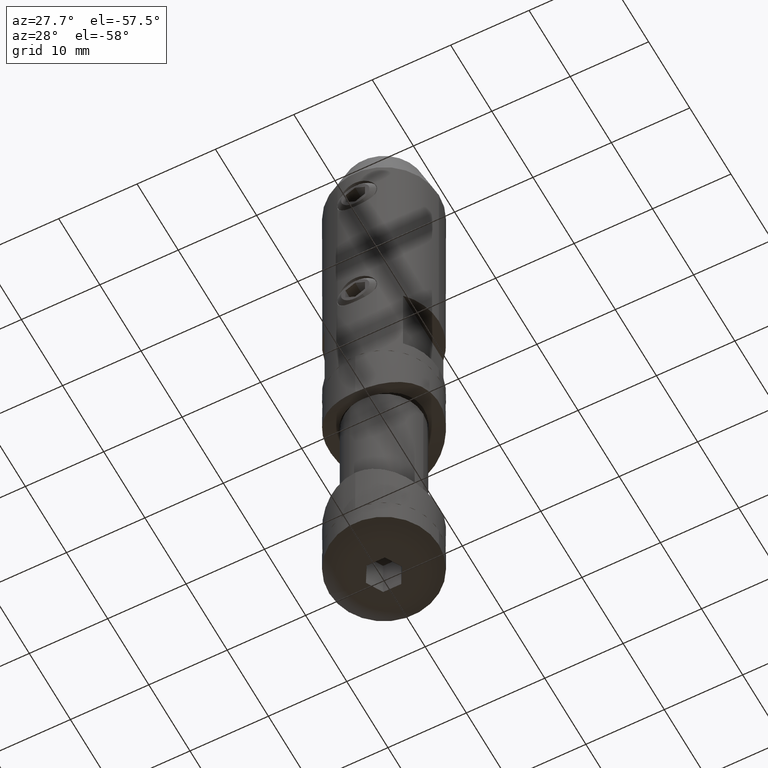
[diagram: clean part render]
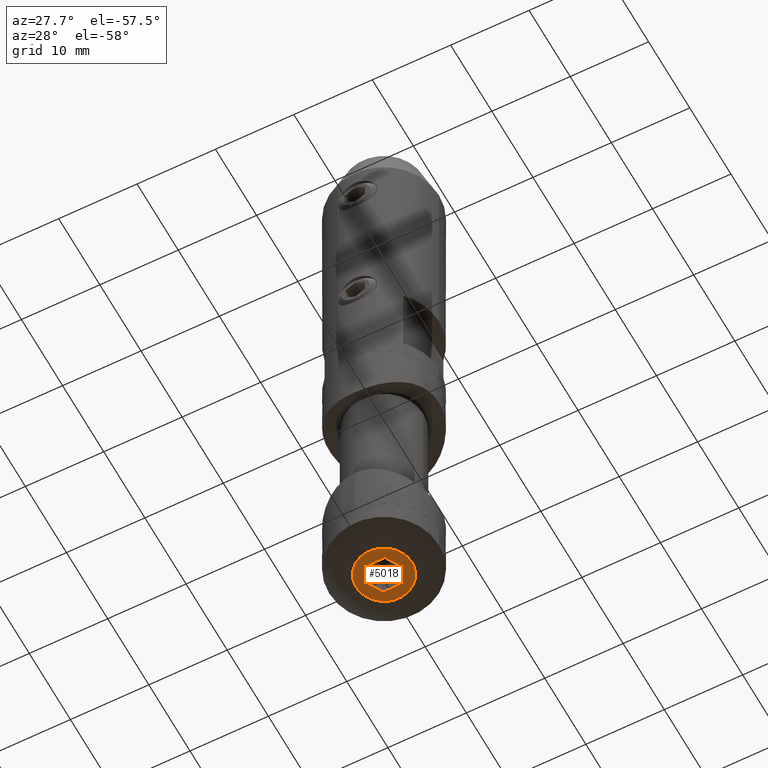
[diagram: same view with one face highlighted and labeled with its STEP entity id]
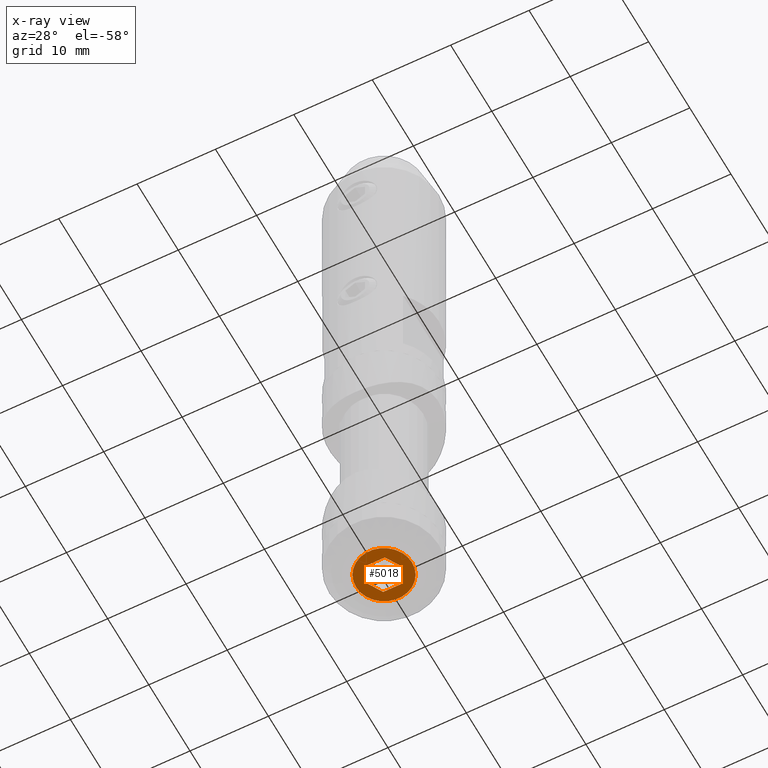
[diagram: x-ray of the same camera — body ghosted, the highlighted face saturated]
A machine part, auxiliary view. The second image highlights one B-rep face of the part: STEP entity #5018.
The next image is the same camera in x-ray: the body ghosted, the highlighted face saturated — about 0% of this face is hidden behind the body in this view.
In plain terms, the highlighted planar face has unit normal (0, 0, -1).
Its self-contained STEP definition (entity closure, byte-faithful):
#89 = VERTEX_POINT ( 'NONE', #6895 ) ;
#139 = VECTOR ( 'NONE', #18276, 1000.000000000000000 ) ;
#729 = VERTEX_POINT ( 'NONE', #9227 ) ;
#873 = CARTESIAN_POINT ( 'NONE',  ( 1.154700538379251240, -1.999999999999999556, -17.69999999999999929 ) ) ;
#1063 = ORIENTED_EDGE ( 'NONE', *, *, #13572, .F. ) ;
#1154 = CARTESIAN_POINT ( 'NONE',  ( 2.309401076758503368, -1.665055585136554276E-17, -17.69999999999999929 ) ) ;
#1717 = AXIS2_PLACEMENT_3D ( 'NONE', #12599, #18698, #8086 ) ;
#1738 = DIRECTION ( 'NONE',  ( 1.000000000000000000, 0.000000000000000000, 0.000000000000000000 ) ) ;
#1829 = EDGE_CURVE ( 'NONE', #19934, #7483, #12303, .T. ) ;
#1869 = CARTESIAN_POINT ( 'NONE',  ( 0.000000000000000000, 0.000000000000000000, -17.69999999999999929 ) ) ;
#1882 = CARTESIAN_POINT ( 'NONE',  ( 1.154700538379251240, -1.999999999999999556, -17.69999999999999929 ) ) ;
#2446 = ORIENTED_EDGE ( 'NONE', *, *, #11374, .F. ) ;
#2649 = ORIENTED_EDGE ( 'NONE', *, *, #4650, .F. ) ;
#2783 = LINE ( 'NONE', #873, #15990 ) ;
#3669 = DIRECTION ( 'NONE',  ( -0.4999999999999998890, 0.8660254037844387076, 0.000000000000000000 ) ) ;
#4345 = CIRCLE ( 'NONE', #11882, 3.570714360103545371 ) ;
#4589 = DIRECTION ( 'NONE',  ( 0.5000000000000000000, -0.8660254037844385966, 0.000000000000000000 ) ) ;
#4650 = EDGE_CURVE ( 'NONE', #89, #9829, #4345, .T. ) ;
#4950 = DIRECTION ( 'NONE',  ( 0.5000000000000001110, 0.8660254037844384856, 0.000000000000000000 ) ) ;
#5018 = ADVANCED_FACE ( 'NONE', ( #14882, #6971 ), #5067, .T. ) ;
#5067 = PLANE ( 'NONE',  #1717 ) ;
#5104 = VECTOR ( 'NONE', #10812, 1000.000000000000227 ) ;
#6571 = CARTESIAN_POINT ( 'NONE',  ( 3.570714360103545371, 0.000000000000000000, -17.69999999999999929 ) ) ;
#6660 = ORIENTED_EDGE ( 'NONE', *, *, #1829, .F. ) ;
#6895 = CARTESIAN_POINT ( 'NONE',  ( -3.570714360103545371, 6.472695752900883550E-16, -17.69999999999999929 ) ) ;
#6898 = ORIENTED_EDGE ( 'NONE', *, *, #11687, .F. ) ;
#6971 = FACE_OUTER_BOUND ( 'NONE', #18158, .T. ) ;
#6994 = EDGE_CURVE ( 'NONE', #729, #8470, #17764, .T. ) ;
#7483 = VERTEX_POINT ( 'NONE', #1882 ) ;
#7493 = DIRECTION ( 'NONE',  ( -1.000000000000000000, 0.000000000000000000, 0.000000000000000000 ) ) ;
#7690 = EDGE_CURVE ( 'NONE', #12563, #19934, #9094, .T. ) ;
#8086 = DIRECTION ( 'NONE',  ( -1.000000000000000000, 0.000000000000000000, -0.000000000000000000 ) ) ;
#8327 = LINE ( 'NONE', #18403, #139 ) ;
#8470 = VERTEX_POINT ( 'NONE', #19401 ) ;
#8861 = CARTESIAN_POINT ( 'NONE',  ( -1.154700538379252794, -1.999999999999999556, -17.69999999999999929 ) ) ;
#9064 = ORIENTED_EDGE ( 'NONE', *, *, #14583, .F. ) ;
#9094 = LINE ( 'NONE', #9150, #14859 ) ;
#9150 = CARTESIAN_POINT ( 'NONE',  ( 1.154700538379251684, 2.000000000000000000, -17.69999999999999929 ) ) ;
#9227 = CARTESIAN_POINT ( 'NONE',  ( -2.309401076758503812, -2.168404344971008868E-16, -17.69999999999999929 ) ) ;
#9829 = VERTEX_POINT ( 'NONE', #6571 ) ;
#10812 = DIRECTION ( 'NONE',  ( -0.5000000000000002220, -0.8660254037844384856, 0.000000000000000000 ) ) ;
#10916 = CARTESIAN_POINT ( 'NONE',  ( -2.309401076758503812, -4.522388937143589984E-16, -17.69999999999999929 ) ) ;
#11374 = EDGE_CURVE ( 'NONE', #8470, #12563, #8327, .T. ) ;
#11687 = EDGE_CURVE ( 'NONE', #7483, #19498, #2783, .T. ) ;
#11882 = AXIS2_PLACEMENT_3D ( 'NONE', #1869, #14228, #1738 ) ;
#12303 = LINE ( 'NONE', #1154, #5104 ) ;
#12484 = ORIENTED_EDGE ( 'NONE', *, *, #7690, .F. ) ;
#12563 = VERTEX_POINT ( 'NONE', #16935 ) ;
#12599 = CARTESIAN_POINT ( 'NONE',  ( 0.000000000000000000, 0.000000000000000000, -17.69999999999999929 ) ) ;
#13106 = AXIS2_PLACEMENT_3D ( 'NONE', #13848, #16889, #15382 ) ;
#13572 = EDGE_CURVE ( 'NONE', #9829, #89, #13803, .T. ) ;
#13803 = CIRCLE ( 'NONE', #13106, 3.570714360103545371 ) ;
#13848 = CARTESIAN_POINT ( 'NONE',  ( 0.000000000000000000, 0.000000000000000000, -17.69999999999999929 ) ) ;
#14111 = VECTOR ( 'NONE', #4950, 1000.000000000000227 ) ;
#14228 = DIRECTION ( 'NONE',  ( -0.000000000000000000, -0.000000000000000000, 1.000000000000000000 ) ) ;
#14457 = CARTESIAN_POINT ( 'NONE',  ( -1.154700538379252794, -1.999999999999999556, -17.69999999999999929 ) ) ;
#14583 = EDGE_CURVE ( 'NONE', #19498, #729, #18593, .T. ) ;
#14859 = VECTOR ( 'NONE', #4589, 1000.000000000000227 ) ;
#14882 = FACE_BOUND ( 'NONE', #16682, .T. ) ;
#15382 = DIRECTION ( 'NONE',  ( 1.000000000000000000, 0.000000000000000000, 0.000000000000000000 ) ) ;
#15444 = VECTOR ( 'NONE', #3669, 1000.000000000000000 ) ;
#15990 = VECTOR ( 'NONE', #7493, 1000.000000000000000 ) ;
#16682 = EDGE_LOOP ( 'NONE', ( #9064, #6898, #6660, #12484, #2446, #17949 ) ) ;
#16889 = DIRECTION ( 'NONE',  ( -0.000000000000000000, -0.000000000000000000, 1.000000000000000000 ) ) ;
#16935 = CARTESIAN_POINT ( 'NONE',  ( 1.154700538379251684, 2.000000000000000000, -17.69999999999999929 ) ) ;
#17764 = LINE ( 'NONE', #10916, #14111 ) ;
#17949 = ORIENTED_EDGE ( 'NONE', *, *, #6994, .F. ) ;
#18158 = EDGE_LOOP ( 'NONE', ( #1063, #2649 ) ) ;
#18276 = DIRECTION ( 'NONE',  ( 1.000000000000000000, -1.877893248421449775E-16, 0.000000000000000000 ) ) ;
#18403 = CARTESIAN_POINT ( 'NONE',  ( -1.154700538379251240, 2.000000000000000444, -17.69999999999999929 ) ) ;
#18593 = LINE ( 'NONE', #14457, #15444 ) ;
#18698 = DIRECTION ( 'NONE',  ( 0.000000000000000000, 0.000000000000000000, -1.000000000000000000 ) ) ;
#18806 = CARTESIAN_POINT ( 'NONE',  ( 2.309401076758503368, -1.665055585136554276E-17, -17.69999999999999929 ) ) ;
#19401 = CARTESIAN_POINT ( 'NONE',  ( -1.154700538379251240, 2.000000000000000444, -17.69999999999999929 ) ) ;
#19498 = VERTEX_POINT ( 'NONE', #8861 ) ;
#19934 = VERTEX_POINT ( 'NONE', #18806 ) ;